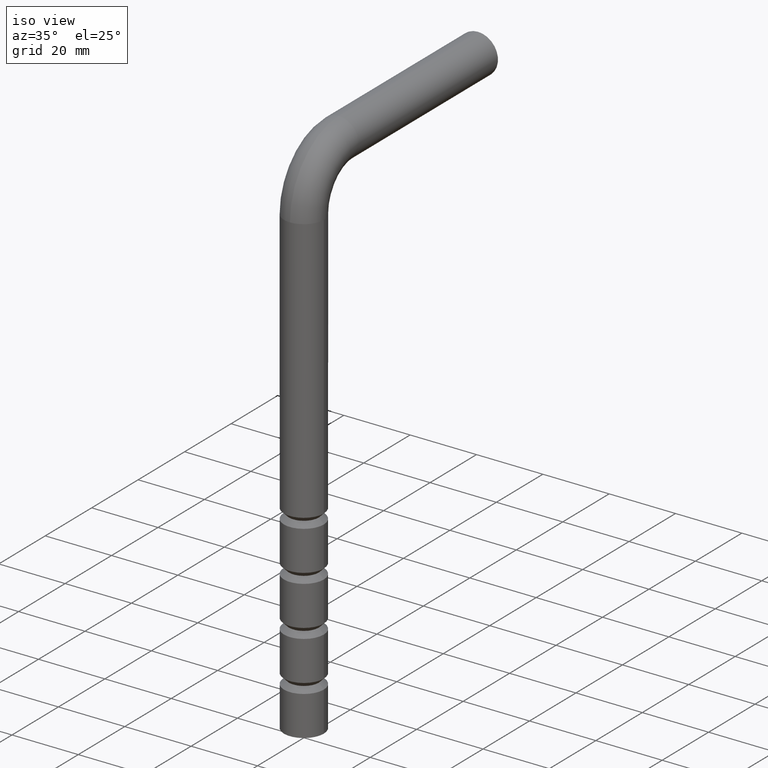
[diagram: clean part render]
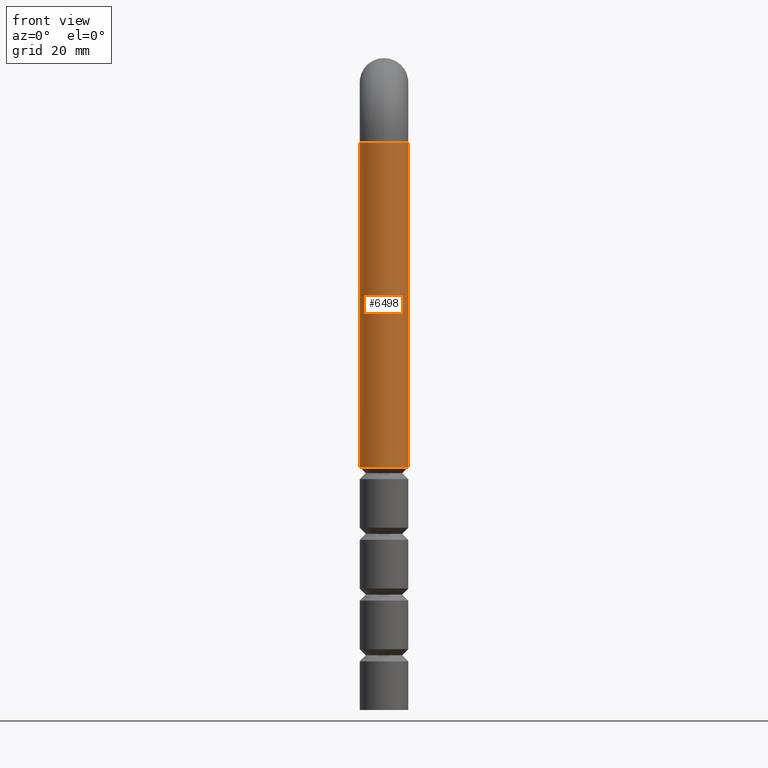
[diagram: tour spotlight — one face highlighted and labeled with its STEP entity id]
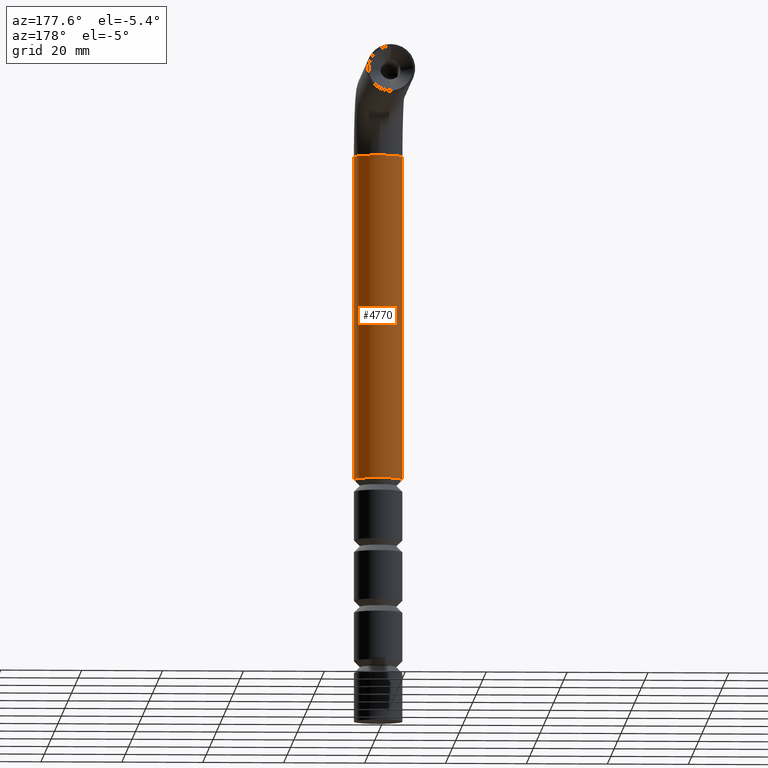
[diagram: tour spotlight — one face highlighted and labeled with its STEP entity id]
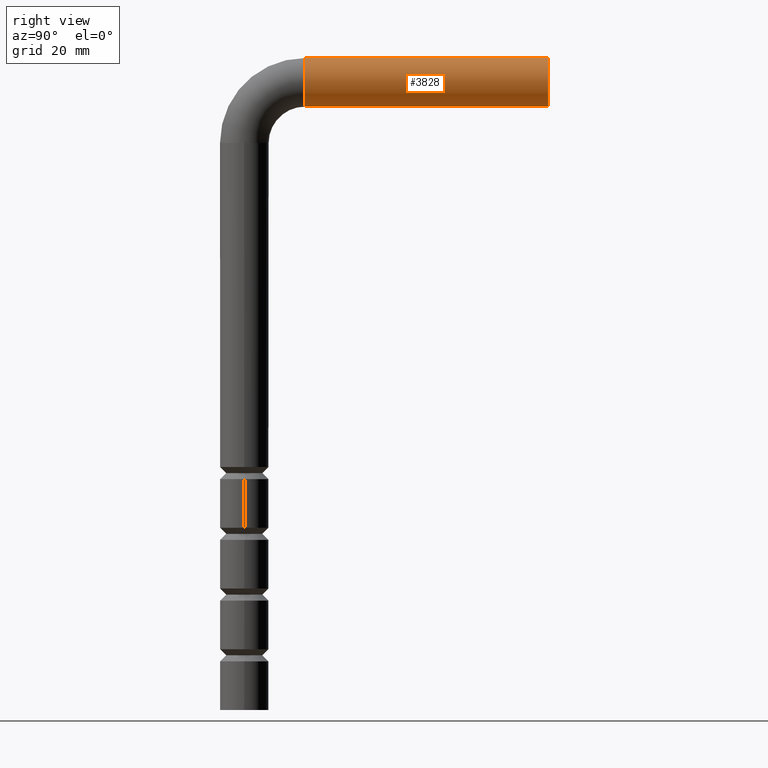
[diagram: tour spotlight — one face highlighted and labeled with its STEP entity id]
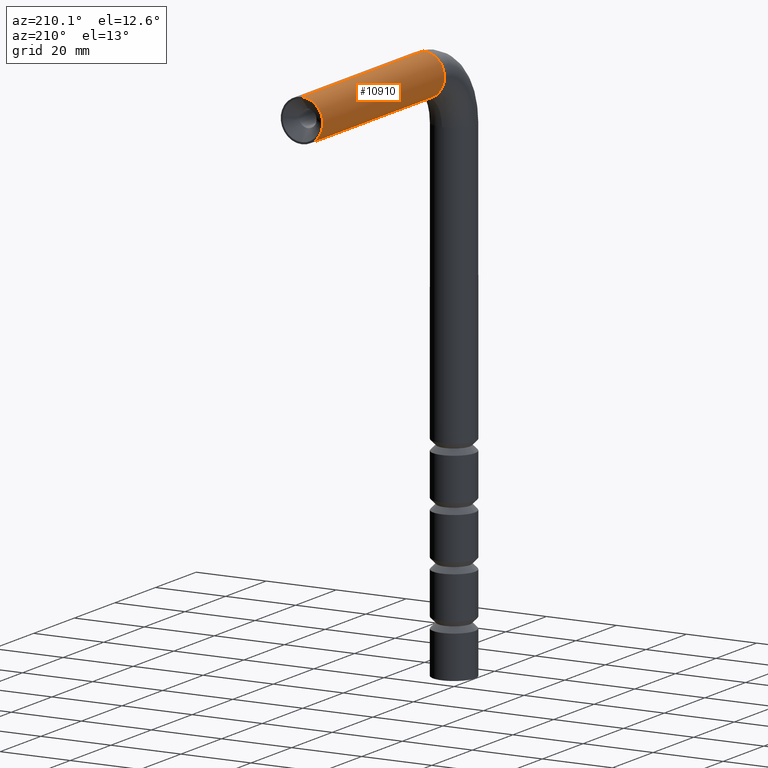
[diagram: tour spotlight — one face highlighted and labeled with its STEP entity id]
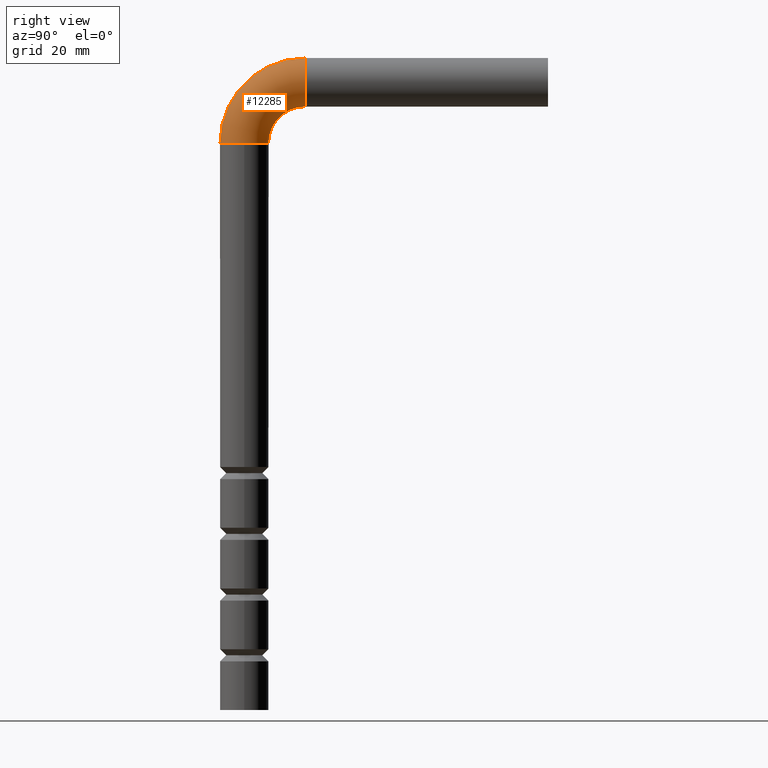
[diagram: tour spotlight — one face highlighted and labeled with its STEP entity id]
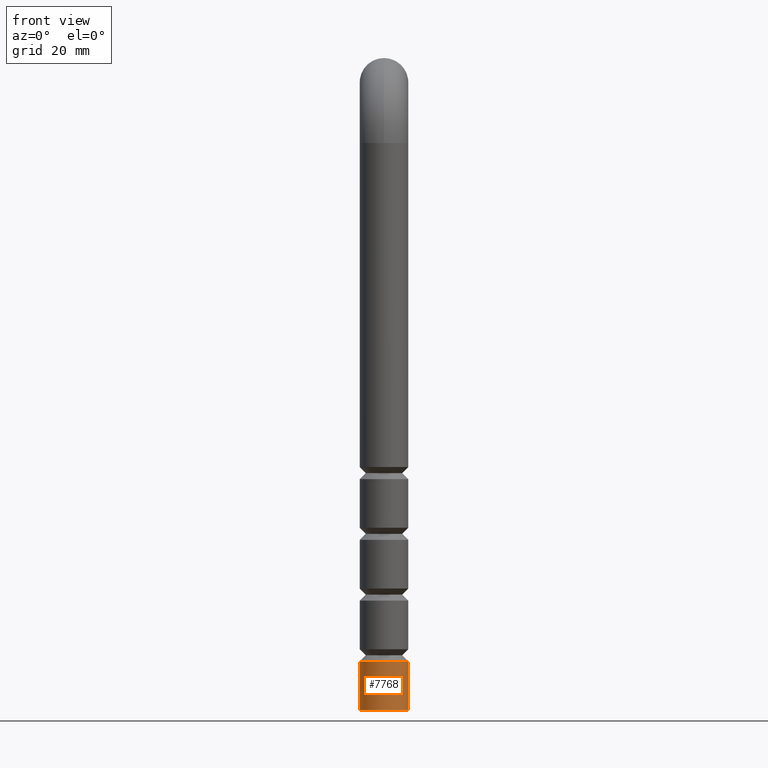
[diagram: tour spotlight — one face highlighted and labeled with its STEP entity id]
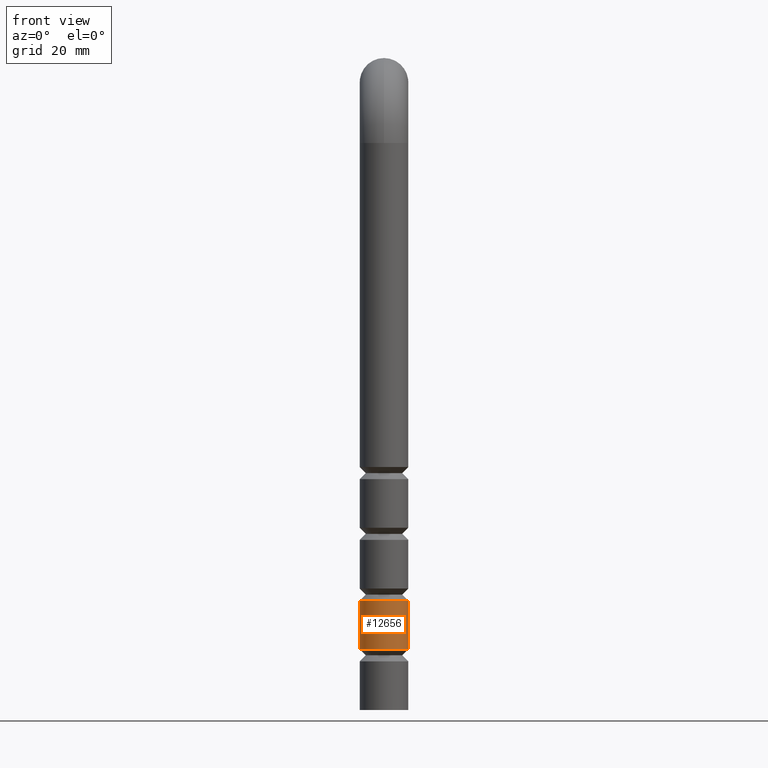
[diagram: tour spotlight — one face highlighted and labeled with its STEP entity id]
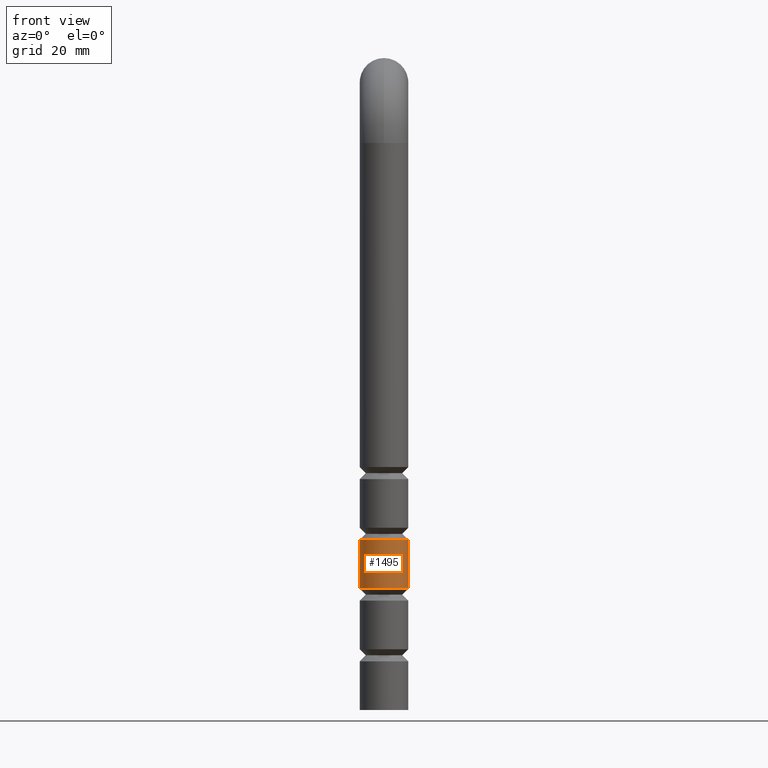
[diagram: tour spotlight — one face highlighted and labeled with its STEP entity id]
A machine part: a face-by-face anatomy tour. The part has 261 B-rep faces; the first image is the clean iso view, then the 8 largest visible faces are spotlighted one at a time (largest first), each with its STEP entity span.

Face 1 — front view, entity #6498. In plain terms, the highlighted cylindrical surface (edge-blend (fillet) strip) has radius 6 mm, axis along (0, 0, -1).
Definition (entity closure, byte-faithful):
#28 = VECTOR ( 'NONE', #3652, 1000.000000000000000 ) ;
#454 = VERTEX_POINT ( 'NONE', #7347 ) ;
#538 = CYLINDRICAL_SURFACE ( 'NONE', #5263, 6.000000000000000888 ) ;
#826 = DIRECTION ( 'NONE',  ( 1.000000000000000000, 0.000000000000000000, 0.000000000000000000 ) ) ;
#1208 = ORIENTED_EDGE ( 'NONE', *, *, #10319, .F. ) ;
#1636 = DIRECTION ( 'NONE',  ( 0.000000000000000000, 0.000000000000000000, 1.000000000000000000 ) ) ;
#1962 = FACE_OUTER_BOUND ( 'NONE', #2693, .T. ) ;
#2276 = CARTESIAN_POINT ( 'NONE',  ( -6.000000000000000888, 0.000000000000000000, 140.0000000000000000 ) ) ;
#2401 = CIRCLE ( 'NONE', #2988, 6.000000000000000888 ) ;
#2693 = EDGE_LOOP ( 'NONE', ( #1208, #7307, #6467, #9650, #5825 ) ) ;
#2791 = CIRCLE ( 'NONE', #6458, 5.999999999999686473 ) ;
#2988 = AXIS2_PLACEMENT_3D ( 'NONE', #3940, #11941, #826 ) ;
#3094 = DIRECTION ( 'NONE',  ( -0.000000000000000000, -0.000000000000000000, -1.000000000000000000 ) ) ;
#3357 = CIRCLE ( 'NONE', #11231, 6.000000000000000888 ) ;
#3486 = DIRECTION ( 'NONE',  ( 1.000000000000000000, 0.000000000000000000, 0.000000000000000000 ) ) ;
#3491 = DIRECTION ( 'NONE',  ( 0.000000000000000000, 0.000000000000000000, -1.000000000000000000 ) ) ;
#3538 = VECTOR ( 'NONE', #3491, 1000.000000000000000 ) ;
#3652 = DIRECTION ( 'NONE',  ( 0.000000000000000000, 0.000000000000000000, -1.000000000000000000 ) ) ;
#3940 = CARTESIAN_POINT ( 'NONE',  ( 0.000000000000000000, -6.938893903907228378E-15, 140.0000000000000000 ) ) ;
#3955 = CARTESIAN_POINT ( 'NONE',  ( 0.000000000000000000, 0.000000000000000000, 140.0000000000000000 ) ) ;
#4639 = CARTESIAN_POINT ( 'NONE',  ( 0.000000000000000000, -6.938893903907228378E-15, 140.0000000000000000 ) ) ;
#4983 = EDGE_CURVE ( 'NONE', #8849, #454, #2791, .T. ) ;
#5127 = DIRECTION ( 'NONE',  ( -1.000000000000000000, 0.000000000000000000, 0.000000000000000000 ) ) ;
#5263 = AXIS2_PLACEMENT_3D ( 'NONE', #3955, #5956, #7229 ) ;
#5825 = ORIENTED_EDGE ( 'NONE', *, *, #4983, .F. ) ;
#5956 = DIRECTION ( 'NONE',  ( 0.000000000000000000, 0.000000000000000000, -1.000000000000000000 ) ) ;
#5996 = CARTESIAN_POINT ( 'NONE',  ( 0.000000000000000000, 0.000000000000000000, 60.00000000000000000 ) ) ;
#6205 = CARTESIAN_POINT ( 'NONE',  ( -6.000000000000000888, 0.000000000000000000, 140.0000000000000000 ) ) ;
#6458 = AXIS2_PLACEMENT_3D ( 'NONE', #5996, #3094, #5127 ) ;
#6467 = ORIENTED_EDGE ( 'NONE', *, *, #7666, .F. ) ;
#6498 = ADVANCED_FACE ( 'NONE', ( #1962 ), #538, .T. ) ;
#6544 = CARTESIAN_POINT ( 'NONE',  ( 0.000000000000000000, -6.000000000000012434, 140.0000000000000000 ) ) ;
#6547 = LINE ( 'NONE', #9735, #28 ) ;
#6898 = VERTEX_POINT ( 'NONE', #6544 ) ;
#7229 = DIRECTION ( 'NONE',  ( -1.000000000000000000, 0.000000000000000000, 0.000000000000000000 ) ) ;
#7307 = ORIENTED_EDGE ( 'NONE', *, *, #12759, .F. ) ;
#7347 = CARTESIAN_POINT ( 'NONE',  ( -5.999999999999686473, 0.000000000000000000, 60.00000000000000000 ) ) ;
#7666 = EDGE_CURVE ( 'NONE', #12911, #6898, #3357, .T. ) ;
#7797 = CARTESIAN_POINT ( 'NONE',  ( 5.999999999999686473, 7.347880794883926465E-16, 60.00000000000000000 ) ) ;
#8842 = VERTEX_POINT ( 'NONE', #9800 ) ;
#8849 = VERTEX_POINT ( 'NONE', #7797 ) ;
#9650 = ORIENTED_EDGE ( 'NONE', *, *, #11137, .T. ) ;
#9735 = CARTESIAN_POINT ( 'NONE',  ( 6.000000000000000888, 7.347880794884120722E-16, 140.0000000000000000 ) ) ;
#9800 = CARTESIAN_POINT ( 'NONE',  ( 6.000000000000000888, 7.347880794884118750E-16, 140.0000000000000000 ) ) ;
#10319 = EDGE_CURVE ( 'NONE', #8842, #8849, #6547, .T. ) ;
#11137 = EDGE_CURVE ( 'NONE', #12911, #454, #12143, .T. ) ;
#11231 = AXIS2_PLACEMENT_3D ( 'NONE', #4639, #1636, #3486 ) ;
#11941 = DIRECTION ( 'NONE',  ( 0.000000000000000000, 0.000000000000000000, 1.000000000000000000 ) ) ;
#12143 = LINE ( 'NONE', #6205, #3538 ) ;
#12759 = EDGE_CURVE ( 'NONE', #6898, #8842, #2401, .T. ) ;
#12911 = VERTEX_POINT ( 'NONE', #2276 ) ;

Face 2 — auxiliary view, entity #4770. In plain terms, the highlighted cylindrical surface (edge-blend (fillet) strip) has radius 6 mm, axis along (0, 0, -1).
Definition (entity closure, byte-faithful):
#28 = VECTOR ( 'NONE', #3652, 1000.000000000000000 ) ;
#454 = VERTEX_POINT ( 'NONE', #7347 ) ;
#1099 = CARTESIAN_POINT ( 'NONE',  ( 0.000000000000000000, 0.000000000000000000, 140.0000000000000000 ) ) ;
#1518 = FACE_OUTER_BOUND ( 'NONE', #5641, .T. ) ;
#1568 = EDGE_CURVE ( 'NONE', #454, #8849, #11974, .T. ) ;
#1688 = CARTESIAN_POINT ( 'NONE',  ( 0.000000000000000000, 0.000000000000000000, 60.00000000000000000 ) ) ;
#2089 = DIRECTION ( 'NONE',  ( 0.000000000000000000, 0.000000000000000000, 1.000000000000000000 ) ) ;
#2180 = DIRECTION ( 'NONE',  ( 1.000000000000000000, 0.000000000000000000, 0.000000000000000000 ) ) ;
#2276 = CARTESIAN_POINT ( 'NONE',  ( -6.000000000000000888, 0.000000000000000000, 140.0000000000000000 ) ) ;
#2474 = CIRCLE ( 'NONE', #5085, 6.000000000000000888 ) ;
#2667 = DIRECTION ( 'NONE',  ( -1.000000000000000000, 0.000000000000000000, 0.000000000000000000 ) ) ;
#2716 = ORIENTED_EDGE ( 'NONE', *, *, #11137, .F. ) ;
#2901 = CARTESIAN_POINT ( 'NONE',  ( -7.347880794884123680E-16, 5.999999999999993783, 140.0000000000000000 ) ) ;
#3491 = DIRECTION ( 'NONE',  ( 0.000000000000000000, 0.000000000000000000, -1.000000000000000000 ) ) ;
#3538 = VECTOR ( 'NONE', #3491, 1000.000000000000000 ) ;
#3652 = DIRECTION ( 'NONE',  ( 0.000000000000000000, 0.000000000000000000, -1.000000000000000000 ) ) ;
#3885 = CARTESIAN_POINT ( 'NONE',  ( 0.000000000000000000, -6.938893903907228378E-15, 140.0000000000000000 ) ) ;
#3981 = DIRECTION ( 'NONE',  ( 0.000000000000000000, 0.000000000000000000, 1.000000000000000000 ) ) ;
#4605 = EDGE_CURVE ( 'NONE', #8842, #10405, #2474, .T. ) ;
#4709 = EDGE_CURVE ( 'NONE', #10405, #12911, #6777, .T. ) ;
#4770 = ADVANCED_FACE ( 'NONE', ( #1518 ), #12014, .T. ) ;
#5085 = AXIS2_PLACEMENT_3D ( 'NONE', #3885, #3981, #11109 ) ;
#5236 = DIRECTION ( 'NONE',  ( 0.000000000000000000, 0.000000000000000000, -1.000000000000000000 ) ) ;
#5641 = EDGE_LOOP ( 'NONE', ( #7913, #12502, #12984, #2716, #8403 ) ) ;
#5792 = AXIS2_PLACEMENT_3D ( 'NONE', #9161, #2089, #2180 ) ;
#6205 = CARTESIAN_POINT ( 'NONE',  ( -6.000000000000000888, 0.000000000000000000, 140.0000000000000000 ) ) ;
#6547 = LINE ( 'NONE', #9735, #28 ) ;
#6777 = CIRCLE ( 'NONE', #5792, 6.000000000000000888 ) ;
#7347 = CARTESIAN_POINT ( 'NONE',  ( -5.999999999999686473, 0.000000000000000000, 60.00000000000000000 ) ) ;
#7671 = DIRECTION ( 'NONE',  ( -0.000000000000000000, -0.000000000000000000, -1.000000000000000000 ) ) ;
#7797 = CARTESIAN_POINT ( 'NONE',  ( 5.999999999999686473, 7.347880794883926465E-16, 60.00000000000000000 ) ) ;
#7913 = ORIENTED_EDGE ( 'NONE', *, *, #4605, .F. ) ;
#8228 = DIRECTION ( 'NONE',  ( -1.000000000000000000, 0.000000000000000000, 0.000000000000000000 ) ) ;
#8403 = ORIENTED_EDGE ( 'NONE', *, *, #4709, .F. ) ;
#8842 = VERTEX_POINT ( 'NONE', #9800 ) ;
#8849 = VERTEX_POINT ( 'NONE', #7797 ) ;
#9161 = CARTESIAN_POINT ( 'NONE',  ( 0.000000000000000000, -6.938893903907228378E-15, 140.0000000000000000 ) ) ;
#9735 = CARTESIAN_POINT ( 'NONE',  ( 6.000000000000000888, 7.347880794884120722E-16, 140.0000000000000000 ) ) ;
#9800 = CARTESIAN_POINT ( 'NONE',  ( 6.000000000000000888, 7.347880794884118750E-16, 140.0000000000000000 ) ) ;
#10120 = AXIS2_PLACEMENT_3D ( 'NONE', #1099, #5236, #8228 ) ;
#10319 = EDGE_CURVE ( 'NONE', #8842, #8849, #6547, .T. ) ;
#10405 = VERTEX_POINT ( 'NONE', #2901 ) ;
#11109 = DIRECTION ( 'NONE',  ( 1.000000000000000000, 0.000000000000000000, 0.000000000000000000 ) ) ;
#11137 = EDGE_CURVE ( 'NONE', #12911, #454, #12143, .T. ) ;
#11475 = AXIS2_PLACEMENT_3D ( 'NONE', #1688, #7671, #2667 ) ;
#11974 = CIRCLE ( 'NONE', #11475, 5.999999999999686473 ) ;
#12014 = CYLINDRICAL_SURFACE ( 'NONE', #10120, 6.000000000000000888 ) ;
#12143 = LINE ( 'NONE', #6205, #3538 ) ;
#12502 = ORIENTED_EDGE ( 'NONE', *, *, #10319, .T. ) ;
#12911 = VERTEX_POINT ( 'NONE', #2276 ) ;
#12984 = ORIENTED_EDGE ( 'NONE', *, *, #1568, .F. ) ;

Face 3 — right view, entity #3828. In plain terms, the highlighted cylindrical surface (edge-blend (fillet) strip) has radius 6 mm, axis along (0, -1, 0).
Definition (entity closure, byte-faithful):
#415 = DIRECTION ( 'NONE',  ( 0.000000000000000000, 1.000000000000000000, -4.625929269271485914E-16 ) ) ;
#589 = VERTEX_POINT ( 'NONE', #4732 ) ;
#667 = AXIS2_PLACEMENT_3D ( 'NONE', #5836, #6851, #8979 ) ;
#711 = AXIS2_PLACEMENT_3D ( 'NONE', #8787, #2599, #6598 ) ;
#1291 = LINE ( 'NONE', #4419, #4154 ) ;
#2258 = LINE ( 'NONE', #13065, #12779 ) ;
#2589 = CARTESIAN_POINT ( 'NONE',  ( 0.000000000000000000, 75.00000000000000000, 155.0000000000000000 ) ) ;
#2599 = DIRECTION ( 'NONE',  ( 0.000000000000000000, -1.000000000000000000, 4.625929269271485914E-16 ) ) ;
#2915 = DIRECTION ( 'NONE',  ( 0.000000000000000000, -1.000000000000000000, 4.625929269271485914E-16 ) ) ;
#2939 = VERTEX_POINT ( 'NONE', #8490 ) ;
#3035 = CARTESIAN_POINT ( 'NONE',  ( 0.000000000000000000, 75.00000000000000000, 149.0000000000000000 ) ) ;
#3828 = ADVANCED_FACE ( 'NONE', ( #9960 ), #12029, .T. ) ;
#4154 = VECTOR ( 'NONE', #11538, 1000.000000000000000 ) ;
#4363 = EDGE_LOOP ( 'NONE', ( #11713, #11740, #10577, #11070 ) ) ;
#4419 = CARTESIAN_POINT ( 'NONE',  ( 0.000000000000000000, 75.00000000000000000, 149.0000000000000000 ) ) ;
#4732 = CARTESIAN_POINT ( 'NONE',  ( 7.347880794884114806E-16, 75.00000000000000000, 161.0000000000000000 ) ) ;
#5540 = VERTEX_POINT ( 'NONE', #3035 ) ;
#5675 = VERTEX_POINT ( 'NONE', #12451 ) ;
#5717 = EDGE_CURVE ( 'NONE', #589, #5540, #9125, .T. ) ;
#5836 = CARTESIAN_POINT ( 'NONE',  ( 0.000000000000000000, 15.00000000000000000, 155.0000000000000284 ) ) ;
#6598 = DIRECTION ( 'NONE',  ( 0.000000000000000000, 0.000000000000000000, -1.000000000000000000 ) ) ;
#6851 = DIRECTION ( 'NONE',  ( 0.000000000000000000, 1.000000000000000000, -4.625929269271485914E-16 ) ) ;
#7559 = DIRECTION ( 'NONE',  ( 1.000000000000000000, 0.000000000000000000, 0.000000000000000000 ) ) ;
#7619 = EDGE_CURVE ( 'NONE', #5540, #5675, #1291, .T. ) ;
#8490 = CARTESIAN_POINT ( 'NONE',  ( 7.347880794884114806E-16, 15.00000000000000355, 161.0000000000000284 ) ) ;
#8787 = CARTESIAN_POINT ( 'NONE',  ( 0.000000000000000000, 75.00000000000000000, 155.0000000000000000 ) ) ;
#8979 = DIRECTION ( 'NONE',  ( 1.000000000000000000, 0.000000000000000000, 0.000000000000000000 ) ) ;
#9125 = CIRCLE ( 'NONE', #10825, 6.000000000000000888 ) ;
#9960 = FACE_OUTER_BOUND ( 'NONE', #4363, .T. ) ;
#9999 = EDGE_CURVE ( 'NONE', #589, #2939, #2258, .T. ) ;
#10577 = ORIENTED_EDGE ( 'NONE', *, *, #10904, .T. ) ;
#10825 = AXIS2_PLACEMENT_3D ( 'NONE', #2589, #415, #7559 ) ;
#10904 = EDGE_CURVE ( 'NONE', #2939, #5675, #11794, .T. ) ;
#11070 = ORIENTED_EDGE ( 'NONE', *, *, #7619, .F. ) ;
#11538 = DIRECTION ( 'NONE',  ( 0.000000000000000000, -1.000000000000000000, 4.625929269271485914E-16 ) ) ;
#11713 = ORIENTED_EDGE ( 'NONE', *, *, #5717, .F. ) ;
#11740 = ORIENTED_EDGE ( 'NONE', *, *, #9999, .T. ) ;
#11794 = CIRCLE ( 'NONE', #667, 6.000000000000000888 ) ;
#12029 = CYLINDRICAL_SURFACE ( 'NONE', #711, 6.000000000000005329 ) ;
#12451 = CARTESIAN_POINT ( 'NONE',  ( 0.000000000000000000, 14.99999999999999645, 149.0000000000000284 ) ) ;
#12779 = VECTOR ( 'NONE', #2915, 1000.000000000000000 ) ;
#13065 = CARTESIAN_POINT ( 'NONE',  ( 7.347880794884120722E-16, 75.00000000000000000, 161.0000000000000000 ) ) ;

Face 4 — auxiliary view, entity #10910. In plain terms, the highlighted cylindrical surface (edge-blend (fillet) strip) has radius 6 mm, axis along (0, -1, 0).
Definition (entity closure, byte-faithful):
#589 = VERTEX_POINT ( 'NONE', #4732 ) ;
#769 = CARTESIAN_POINT ( 'NONE',  ( 0.000000000000000000, 75.00000000000000000, 155.0000000000000000 ) ) ;
#1291 = LINE ( 'NONE', #4419, #4154 ) ;
#1531 = EDGE_LOOP ( 'NONE', ( #5196, #3246, #9657, #10448 ) ) ;
#2258 = LINE ( 'NONE', #13065, #12779 ) ;
#2553 = AXIS2_PLACEMENT_3D ( 'NONE', #9144, #6244, #9317 ) ;
#2915 = DIRECTION ( 'NONE',  ( 0.000000000000000000, -1.000000000000000000, 4.625929269271485914E-16 ) ) ;
#2939 = VERTEX_POINT ( 'NONE', #8490 ) ;
#3035 = CARTESIAN_POINT ( 'NONE',  ( 0.000000000000000000, 75.00000000000000000, 149.0000000000000000 ) ) ;
#3219 = AXIS2_PLACEMENT_3D ( 'NONE', #8474, #8522, #10384 ) ;
#3246 = ORIENTED_EDGE ( 'NONE', *, *, #7446, .F. ) ;
#4154 = VECTOR ( 'NONE', #11538, 1000.000000000000000 ) ;
#4419 = CARTESIAN_POINT ( 'NONE',  ( 0.000000000000000000, 75.00000000000000000, 149.0000000000000000 ) ) ;
#4732 = CARTESIAN_POINT ( 'NONE',  ( 7.347880794884114806E-16, 75.00000000000000000, 161.0000000000000000 ) ) ;
#5196 = ORIENTED_EDGE ( 'NONE', *, *, #9999, .F. ) ;
#5540 = VERTEX_POINT ( 'NONE', #3035 ) ;
#5675 = VERTEX_POINT ( 'NONE', #12451 ) ;
#6244 = DIRECTION ( 'NONE',  ( 0.000000000000000000, 1.000000000000000000, -4.625929269271485914E-16 ) ) ;
#6378 = CYLINDRICAL_SURFACE ( 'NONE', #6805, 6.000000000000005329 ) ;
#6404 = CIRCLE ( 'NONE', #2553, 6.000000000000000888 ) ;
#6575 = EDGE_CURVE ( 'NONE', #5675, #2939, #12290, .T. ) ;
#6805 = AXIS2_PLACEMENT_3D ( 'NONE', #769, #7868, #9957 ) ;
#7446 = EDGE_CURVE ( 'NONE', #5540, #589, #6404, .T. ) ;
#7619 = EDGE_CURVE ( 'NONE', #5540, #5675, #1291, .T. ) ;
#7868 = DIRECTION ( 'NONE',  ( 0.000000000000000000, -1.000000000000000000, 4.625929269271485914E-16 ) ) ;
#8474 = CARTESIAN_POINT ( 'NONE',  ( 0.000000000000000000, 15.00000000000000000, 155.0000000000000284 ) ) ;
#8490 = CARTESIAN_POINT ( 'NONE',  ( 7.347880794884114806E-16, 15.00000000000000355, 161.0000000000000284 ) ) ;
#8522 = DIRECTION ( 'NONE',  ( 0.000000000000000000, 1.000000000000000000, -4.625929269271485914E-16 ) ) ;
#9144 = CARTESIAN_POINT ( 'NONE',  ( 0.000000000000000000, 75.00000000000000000, 155.0000000000000000 ) ) ;
#9317 = DIRECTION ( 'NONE',  ( 1.000000000000000000, 0.000000000000000000, 0.000000000000000000 ) ) ;
#9657 = ORIENTED_EDGE ( 'NONE', *, *, #7619, .T. ) ;
#9957 = DIRECTION ( 'NONE',  ( 0.000000000000000000, 0.000000000000000000, -1.000000000000000000 ) ) ;
#9999 = EDGE_CURVE ( 'NONE', #589, #2939, #2258, .T. ) ;
#10384 = DIRECTION ( 'NONE',  ( 1.000000000000000000, 0.000000000000000000, 0.000000000000000000 ) ) ;
#10448 = ORIENTED_EDGE ( 'NONE', *, *, #6575, .T. ) ;
#10910 = ADVANCED_FACE ( 'NONE', ( #12112 ), #6378, .T. ) ;
#11538 = DIRECTION ( 'NONE',  ( 0.000000000000000000, -1.000000000000000000, 4.625929269271485914E-16 ) ) ;
#12112 = FACE_OUTER_BOUND ( 'NONE', #1531, .T. ) ;
#12290 = CIRCLE ( 'NONE', #3219, 6.000000000000000888 ) ;
#12451 = CARTESIAN_POINT ( 'NONE',  ( 0.000000000000000000, 14.99999999999999645, 149.0000000000000284 ) ) ;
#12779 = VECTOR ( 'NONE', #2915, 1000.000000000000000 ) ;
#13065 = CARTESIAN_POINT ( 'NONE',  ( 7.347880794884120722E-16, 75.00000000000000000, 161.0000000000000000 ) ) ;

Face 5 — right view, entity #12285. In plain terms, the highlighted toroidal blend (fillet) surface has major radius 15 mm and minor (blend) radius 6 mm.
Definition (entity closure, byte-faithful):
#2 = AXIS2_PLACEMENT_3D ( 'NONE', #4151, #2212, #11592 ) ;
#667 = AXIS2_PLACEMENT_3D ( 'NONE', #5836, #6851, #8979 ) ;
#826 = DIRECTION ( 'NONE',  ( 1.000000000000000000, 0.000000000000000000, 0.000000000000000000 ) ) ;
#2212 = DIRECTION ( 'NONE',  ( 1.000000000000000000, 0.000000000000000000, -0.000000000000000000 ) ) ;
#2334 = ORIENTED_EDGE ( 'NONE', *, *, #5214, .T. ) ;
#2401 = CIRCLE ( 'NONE', #2988, 6.000000000000000888 ) ;
#2474 = CIRCLE ( 'NONE', #5085, 6.000000000000000888 ) ;
#2901 = CARTESIAN_POINT ( 'NONE',  ( -7.347880794884123680E-16, 5.999999999999993783, 140.0000000000000000 ) ) ;
#2939 = VERTEX_POINT ( 'NONE', #8490 ) ;
#2962 = ORIENTED_EDGE ( 'NONE', *, *, #10904, .F. ) ;
#2988 = AXIS2_PLACEMENT_3D ( 'NONE', #3940, #11941, #826 ) ;
#3747 = ORIENTED_EDGE ( 'NONE', *, *, #9045, .F. ) ;
#3808 = AXIS2_PLACEMENT_3D ( 'NONE', #12528, #4370, #7442 ) ;
#3885 = CARTESIAN_POINT ( 'NONE',  ( 0.000000000000000000, -6.938893903907228378E-15, 140.0000000000000000 ) ) ;
#3940 = CARTESIAN_POINT ( 'NONE',  ( 0.000000000000000000, -6.938893903907228378E-15, 140.0000000000000000 ) ) ;
#3981 = DIRECTION ( 'NONE',  ( 0.000000000000000000, 0.000000000000000000, 1.000000000000000000 ) ) ;
#4151 = CARTESIAN_POINT ( 'NONE',  ( 0.000000000000000000, 15.00000000000000000, 140.0000000000000000 ) ) ;
#4370 = DIRECTION ( 'NONE',  ( 1.000000000000000000, 0.000000000000000000, -0.000000000000000000 ) ) ;
#4605 = EDGE_CURVE ( 'NONE', #8842, #10405, #2474, .T. ) ;
#4667 = DIRECTION ( 'NONE',  ( 0.000000000000000000, 0.000000000000000000, -1.000000000000000000 ) ) ;
#5085 = AXIS2_PLACEMENT_3D ( 'NONE', #3885, #3981, #11109 ) ;
#5214 = EDGE_CURVE ( 'NONE', #2939, #6898, #12976, .T. ) ;
#5675 = VERTEX_POINT ( 'NONE', #12451 ) ;
#5836 = CARTESIAN_POINT ( 'NONE',  ( 0.000000000000000000, 15.00000000000000000, 155.0000000000000284 ) ) ;
#6544 = CARTESIAN_POINT ( 'NONE',  ( 0.000000000000000000, -6.000000000000012434, 140.0000000000000000 ) ) ;
#6851 = DIRECTION ( 'NONE',  ( 0.000000000000000000, 1.000000000000000000, -4.625929269271485914E-16 ) ) ;
#6869 = FACE_OUTER_BOUND ( 'NONE', #12045, .T. ) ;
#6898 = VERTEX_POINT ( 'NONE', #6544 ) ;
#7442 = DIRECTION ( 'NONE',  ( 0.000000000000000000, 0.000000000000000000, -1.000000000000000000 ) ) ;
#7880 = CARTESIAN_POINT ( 'NONE',  ( -7.347880794884120722E-16, 15.00000000000000000, 140.0000000000000000 ) ) ;
#8276 = TOROIDAL_SURFACE ( 'NONE', #2, 15.00000000000001421, 6.000000000000000888 ) ;
#8490 = CARTESIAN_POINT ( 'NONE',  ( 7.347880794884114806E-16, 15.00000000000000355, 161.0000000000000284 ) ) ;
#8842 = VERTEX_POINT ( 'NONE', #9800 ) ;
#8979 = DIRECTION ( 'NONE',  ( 1.000000000000000000, 0.000000000000000000, 0.000000000000000000 ) ) ;
#9045 = EDGE_CURVE ( 'NONE', #5675, #10405, #10063, .T. ) ;
#9800 = CARTESIAN_POINT ( 'NONE',  ( 6.000000000000000888, 7.347880794884118750E-16, 140.0000000000000000 ) ) ;
#10063 = CIRCLE ( 'NONE', #12253, 9.000000000000007105 ) ;
#10405 = VERTEX_POINT ( 'NONE', #2901 ) ;
#10904 = EDGE_CURVE ( 'NONE', #2939, #5675, #11794, .T. ) ;
#11109 = DIRECTION ( 'NONE',  ( 1.000000000000000000, 0.000000000000000000, 0.000000000000000000 ) ) ;
#11592 = DIRECTION ( 'NONE',  ( 0.000000000000000000, 0.000000000000000000, -1.000000000000000000 ) ) ;
#11614 = ORIENTED_EDGE ( 'NONE', *, *, #4605, .T. ) ;
#11794 = CIRCLE ( 'NONE', #667, 6.000000000000000888 ) ;
#11885 = DIRECTION ( 'NONE',  ( 1.000000000000000000, 0.000000000000000000, -0.000000000000000000 ) ) ;
#11941 = DIRECTION ( 'NONE',  ( 0.000000000000000000, 0.000000000000000000, 1.000000000000000000 ) ) ;
#12045 = EDGE_LOOP ( 'NONE', ( #2962, #2334, #12882, #11614, #3747 ) ) ;
#12253 = AXIS2_PLACEMENT_3D ( 'NONE', #7880, #11885, #4667 ) ;
#12285 = ADVANCED_FACE ( 'NONE', ( #6869 ), #8276, .T. ) ;
#12451 = CARTESIAN_POINT ( 'NONE',  ( 0.000000000000000000, 14.99999999999999645, 149.0000000000000284 ) ) ;
#12528 = CARTESIAN_POINT ( 'NONE',  ( 0.000000000000000000, 15.00000000000000000, 140.0000000000000000 ) ) ;
#12759 = EDGE_CURVE ( 'NONE', #6898, #8842, #2401, .T. ) ;
#12882 = ORIENTED_EDGE ( 'NONE', *, *, #12759, .T. ) ;
#12976 = CIRCLE ( 'NONE', #3808, 21.00000000000001776 ) ;

Face 6 — front view, entity #7768. In plain terms, the highlighted cylindrical surface (edge-blend (fillet) strip) has radius 6 mm, axis along (0, 0, -1).
Definition (entity closure, byte-faithful):
#36 = CARTESIAN_POINT ( 'NONE',  ( -6.000000000000000888, 0.000000000000000000, 140.0000000000000000 ) ) ;
#735 = VERTEX_POINT ( 'NONE', #12862 ) ;
#847 = DIRECTION ( 'NONE',  ( -0.000000000000000000, -0.000000000000000000, -1.000000000000000000 ) ) ;
#1161 = AXIS2_PLACEMENT_3D ( 'NONE', #6948, #847, #12257 ) ;
#1302 = CARTESIAN_POINT ( 'NONE',  ( 6.000000000000000000, 7.347880794884119736E-16, 12.00000000000000000 ) ) ;
#2068 = AXIS2_PLACEMENT_3D ( 'NONE', #10652, #11715, #11668 ) ;
#2340 = ORIENTED_EDGE ( 'NONE', *, *, #2413, .F. ) ;
#2413 = EDGE_CURVE ( 'NONE', #6644, #11358, #11826, .T. ) ;
#3442 = EDGE_CURVE ( 'NONE', #735, #11358, #6635, .T. ) ;
#3939 = CARTESIAN_POINT ( 'NONE',  ( 0.000000000000000000, 0.000000000000000000, 140.0000000000000000 ) ) ;
#4391 = EDGE_LOOP ( 'NONE', ( #2340, #7720, #6324, #10344 ) ) ;
#4587 = AXIS2_PLACEMENT_3D ( 'NONE', #3939, #7042, #7085 ) ;
#6324 = ORIENTED_EDGE ( 'NONE', *, *, #10986, .T. ) ;
#6424 = VECTOR ( 'NONE', #12795, 1000.000000000000000 ) ;
#6635 = CIRCLE ( 'NONE', #2068, 6.000000000000000888 ) ;
#6644 = VERTEX_POINT ( 'NONE', #1302 ) ;
#6705 = LINE ( 'NONE', #36, #9088 ) ;
#6948 = CARTESIAN_POINT ( 'NONE',  ( 0.000000000000000000, 0.000000000000000000, 12.00000000000000000 ) ) ;
#7042 = DIRECTION ( 'NONE',  ( 0.000000000000000000, 0.000000000000000000, -1.000000000000000000 ) ) ;
#7085 = DIRECTION ( 'NONE',  ( -1.000000000000000000, 0.000000000000000000, 0.000000000000000000 ) ) ;
#7720 = ORIENTED_EDGE ( 'NONE', *, *, #8288, .T. ) ;
#7768 = ADVANCED_FACE ( 'NONE', ( #9414 ), #11813, .T. ) ;
#8215 = DIRECTION ( 'NONE',  ( 0.000000000000000000, 0.000000000000000000, -1.000000000000000000 ) ) ;
#8288 = EDGE_CURVE ( 'NONE', #6644, #12314, #8945, .T. ) ;
#8945 = CIRCLE ( 'NONE', #1161, 6.000000000000000000 ) ;
#9088 = VECTOR ( 'NONE', #8215, 1000.000000000000000 ) ;
#9414 = FACE_OUTER_BOUND ( 'NONE', #4391, .T. ) ;
#10344 = ORIENTED_EDGE ( 'NONE', *, *, #3442, .T. ) ;
#10652 = CARTESIAN_POINT ( 'NONE',  ( 0.000000000000000000, 0.000000000000000000, 0.000000000000000000 ) ) ;
#10757 = CARTESIAN_POINT ( 'NONE',  ( 6.000000000000000888, 7.347880794884120722E-16, 0.000000000000000000 ) ) ;
#10986 = EDGE_CURVE ( 'NONE', #12314, #735, #6705, .T. ) ;
#11278 = CARTESIAN_POINT ( 'NONE',  ( -6.000000000000000000, 0.000000000000000000, 12.00000000000000000 ) ) ;
#11358 = VERTEX_POINT ( 'NONE', #10757 ) ;
#11668 = DIRECTION ( 'NONE',  ( 1.000000000000000000, 0.000000000000000000, 0.000000000000000000 ) ) ;
#11715 = DIRECTION ( 'NONE',  ( 0.000000000000000000, 0.000000000000000000, 1.000000000000000000 ) ) ;
#11813 = CYLINDRICAL_SURFACE ( 'NONE', #4587, 6.000000000000000888 ) ;
#11826 = LINE ( 'NONE', #11894, #6424 ) ;
#11894 = CARTESIAN_POINT ( 'NONE',  ( 6.000000000000000888, 7.347880794884120722E-16, 140.0000000000000000 ) ) ;
#12257 = DIRECTION ( 'NONE',  ( -1.000000000000000000, 0.000000000000000000, 0.000000000000000000 ) ) ;
#12314 = VERTEX_POINT ( 'NONE', #11278 ) ;
#12795 = DIRECTION ( 'NONE',  ( 0.000000000000000000, 0.000000000000000000, -1.000000000000000000 ) ) ;
#12862 = CARTESIAN_POINT ( 'NONE',  ( -6.000000000000000888, 0.000000000000000000, 0.000000000000000000 ) ) ;

Face 7 — front view, entity #12656. In plain terms, the highlighted cylindrical surface (edge-blend (fillet) strip) has radius 6 mm, axis along (0, 0, -1).
Definition (entity closure, byte-faithful):
#114 = CIRCLE ( 'NONE', #12555, 6.000000000000000000 ) ;
#248 = EDGE_LOOP ( 'NONE', ( #9340, #2851, #3429, #5148 ) ) ;
#549 = VECTOR ( 'NONE', #4665, 1000.000000000000000 ) ;
#854 = LINE ( 'NONE', #9666, #12141 ) ;
#859 = CARTESIAN_POINT ( 'NONE',  ( 6.000000000000000000, 7.347880794884120722E-16, 15.00000000000000000 ) ) ;
#2256 = EDGE_CURVE ( 'NONE', #7088, #2545, #854, .T. ) ;
#2406 = DIRECTION ( 'NONE',  ( -1.000000000000000000, 0.000000000000000000, 0.000000000000000000 ) ) ;
#2447 = CARTESIAN_POINT ( 'NONE',  ( 0.000000000000000000, 0.000000000000000000, 15.00000000000000000 ) ) ;
#2545 = VERTEX_POINT ( 'NONE', #859 ) ;
#2851 = ORIENTED_EDGE ( 'NONE', *, *, #10705, .T. ) ;
#2948 = EDGE_CURVE ( 'NONE', #2545, #8313, #114, .T. ) ;
#3033 = FACE_OUTER_BOUND ( 'NONE', #248, .T. ) ;
#3380 = DIRECTION ( 'NONE',  ( 0.000000000000000000, 0.000000000000000000, -1.000000000000000000 ) ) ;
#3429 = ORIENTED_EDGE ( 'NONE', *, *, #5835, .T. ) ;
#3790 = CARTESIAN_POINT ( 'NONE',  ( -6.000000000000000000, 0.000000000000000000, 15.00000000000000000 ) ) ;
#4150 = CARTESIAN_POINT ( 'NONE',  ( -5.999999999999895195, 0.000000000000000000, 27.00000000000000000 ) ) ;
#4665 = DIRECTION ( 'NONE',  ( 0.000000000000000000, 0.000000000000000000, -1.000000000000000000 ) ) ;
#4747 = AXIS2_PLACEMENT_3D ( 'NONE', #7550, #7372, #10450 ) ;
#5148 = ORIENTED_EDGE ( 'NONE', *, *, #2948, .F. ) ;
#5835 = EDGE_CURVE ( 'NONE', #7540, #8313, #8664, .T. ) ;
#7088 = VERTEX_POINT ( 'NONE', #7883 ) ;
#7372 = DIRECTION ( 'NONE',  ( -0.000000000000000000, -0.000000000000000000, -1.000000000000000000 ) ) ;
#7540 = VERTEX_POINT ( 'NONE', #4150 ) ;
#7550 = CARTESIAN_POINT ( 'NONE',  ( 0.000000000000000000, 0.000000000000000000, 27.00000000000000000 ) ) ;
#7767 = CARTESIAN_POINT ( 'NONE',  ( 0.000000000000000000, 0.000000000000000000, 140.0000000000000000 ) ) ;
#7883 = CARTESIAN_POINT ( 'NONE',  ( 5.999999999999895195, 7.347880794883991546E-16, 27.00000000000000000 ) ) ;
#7997 = AXIS2_PLACEMENT_3D ( 'NONE', #7767, #12806, #11764 ) ;
#8313 = VERTEX_POINT ( 'NONE', #3790 ) ;
#8664 = LINE ( 'NONE', #11650, #549 ) ;
#9340 = ORIENTED_EDGE ( 'NONE', *, *, #2256, .F. ) ;
#9513 = DIRECTION ( 'NONE',  ( -0.000000000000000000, -0.000000000000000000, -1.000000000000000000 ) ) ;
#9666 = CARTESIAN_POINT ( 'NONE',  ( 6.000000000000000888, 7.347880794884120722E-16, 140.0000000000000000 ) ) ;
#10450 = DIRECTION ( 'NONE',  ( -1.000000000000000000, 0.000000000000000000, 0.000000000000000000 ) ) ;
#10504 = CYLINDRICAL_SURFACE ( 'NONE', #7997, 6.000000000000000888 ) ;
#10705 = EDGE_CURVE ( 'NONE', #7088, #7540, #12932, .T. ) ;
#11650 = CARTESIAN_POINT ( 'NONE',  ( -6.000000000000000888, 0.000000000000000000, 140.0000000000000000 ) ) ;
#11764 = DIRECTION ( 'NONE',  ( -1.000000000000000000, 0.000000000000000000, 0.000000000000000000 ) ) ;
#12141 = VECTOR ( 'NONE', #3380, 1000.000000000000000 ) ;
#12555 = AXIS2_PLACEMENT_3D ( 'NONE', #2447, #9513, #2406 ) ;
#12656 = ADVANCED_FACE ( 'NONE', ( #3033 ), #10504, .T. ) ;
#12806 = DIRECTION ( 'NONE',  ( 0.000000000000000000, 0.000000000000000000, -1.000000000000000000 ) ) ;
#12932 = CIRCLE ( 'NONE', #4747, 5.999999999999895195 ) ;

Face 8 — front view, entity #1495. In plain terms, the highlighted cylindrical surface (edge-blend (fillet) strip) has radius 6 mm, axis along (0, 0, -1).
Definition (entity closure, byte-faithful):
#60 = FACE_OUTER_BOUND ( 'NONE', #8863, .T. ) ;
#263 = ORIENTED_EDGE ( 'NONE', *, *, #2152, .T. ) ;
#1211 = DIRECTION ( 'NONE',  ( 0.000000000000000000, 0.000000000000000000, -1.000000000000000000 ) ) ;
#1239 = AXIS2_PLACEMENT_3D ( 'NONE', #8697, #2597, #3616 ) ;
#1468 = EDGE_CURVE ( 'NONE', #11214, #8062, #7212, .T. ) ;
#1495 = ADVANCED_FACE ( 'NONE', ( #60 ), #2107, .T. ) ;
#1966 = LINE ( 'NONE', #11354, #11045 ) ;
#2107 = CYLINDRICAL_SURFACE ( 'NONE', #2624, 6.000000000000000888 ) ;
#2152 = EDGE_CURVE ( 'NONE', #8062, #7243, #1966, .T. ) ;
#2290 = ORIENTED_EDGE ( 'NONE', *, *, #13211, .F. ) ;
#2538 = CARTESIAN_POINT ( 'NONE',  ( -5.999999999999895195, 0.000000000000000000, 30.00000000000000000 ) ) ;
#2597 = DIRECTION ( 'NONE',  ( -0.000000000000000000, -0.000000000000000000, -1.000000000000000000 ) ) ;
#2624 = AXIS2_PLACEMENT_3D ( 'NONE', #10813, #10740, #11795 ) ;
#3616 = DIRECTION ( 'NONE',  ( -1.000000000000000000, 0.000000000000000000, 0.000000000000000000 ) ) ;
#3741 = CARTESIAN_POINT ( 'NONE',  ( 5.999999999999895195, 7.347880794884055641E-16, 30.00000000000000000 ) ) ;
#4078 = AXIS2_PLACEMENT_3D ( 'NONE', #10730, #11883, #4623 ) ;
#4623 = DIRECTION ( 'NONE',  ( -1.000000000000000000, 0.000000000000000000, 0.000000000000000000 ) ) ;
#6040 = ORIENTED_EDGE ( 'NONE', *, *, #9174, .F. ) ;
#6965 = VERTEX_POINT ( 'NONE', #3741 ) ;
#7212 = CIRCLE ( 'NONE', #1239, 5.999999999999790390 ) ;
#7243 = VERTEX_POINT ( 'NONE', #2538 ) ;
#7375 = CARTESIAN_POINT ( 'NONE',  ( -5.999999999999790390, 0.000000000000000000, 41.99999999999999289 ) ) ;
#8062 = VERTEX_POINT ( 'NONE', #7375 ) ;
#8266 = CARTESIAN_POINT ( 'NONE',  ( 6.000000000000000888, 7.347880794884120722E-16, 140.0000000000000000 ) ) ;
#8697 = CARTESIAN_POINT ( 'NONE',  ( 0.000000000000000000, 0.000000000000000000, 41.99999999999999289 ) ) ;
#8863 = EDGE_LOOP ( 'NONE', ( #6040, #12338, #263, #2290 ) ) ;
#9174 = EDGE_CURVE ( 'NONE', #11214, #6965, #9743, .T. ) ;
#9283 = DIRECTION ( 'NONE',  ( 0.000000000000000000, 0.000000000000000000, -1.000000000000000000 ) ) ;
#9743 = LINE ( 'NONE', #8266, #12131 ) ;
#10730 = CARTESIAN_POINT ( 'NONE',  ( 0.000000000000000000, 0.000000000000000000, 30.00000000000000000 ) ) ;
#10740 = DIRECTION ( 'NONE',  ( 0.000000000000000000, 0.000000000000000000, -1.000000000000000000 ) ) ;
#10813 = CARTESIAN_POINT ( 'NONE',  ( 0.000000000000000000, 0.000000000000000000, 140.0000000000000000 ) ) ;
#11045 = VECTOR ( 'NONE', #1211, 1000.000000000000000 ) ;
#11214 = VERTEX_POINT ( 'NONE', #12669 ) ;
#11354 = CARTESIAN_POINT ( 'NONE',  ( -6.000000000000000888, 0.000000000000000000, 140.0000000000000000 ) ) ;
#11778 = CIRCLE ( 'NONE', #4078, 5.999999999999895195 ) ;
#11795 = DIRECTION ( 'NONE',  ( -1.000000000000000000, 0.000000000000000000, 0.000000000000000000 ) ) ;
#11883 = DIRECTION ( 'NONE',  ( -0.000000000000000000, -0.000000000000000000, -1.000000000000000000 ) ) ;
#12131 = VECTOR ( 'NONE', #9283, 1000.000000000000000 ) ;
#12338 = ORIENTED_EDGE ( 'NONE', *, *, #1468, .T. ) ;
#12669 = CARTESIAN_POINT ( 'NONE',  ( 5.999999999999790390, 7.347880794883862370E-16, 41.99999999999999289 ) ) ;
#13211 = EDGE_CURVE ( 'NONE', #6965, #7243, #11778, .T. ) ;